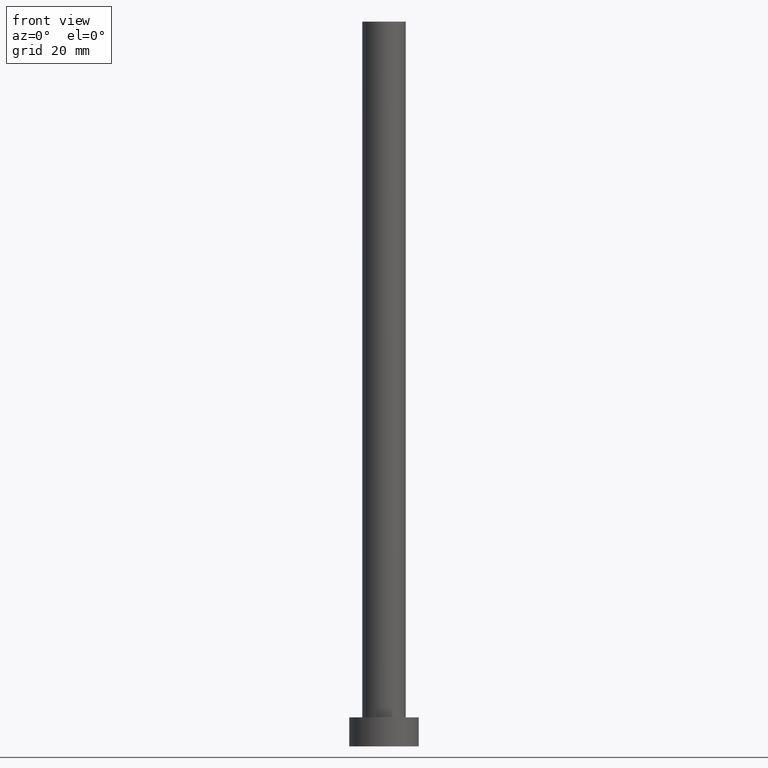
[diagram: clean part render]
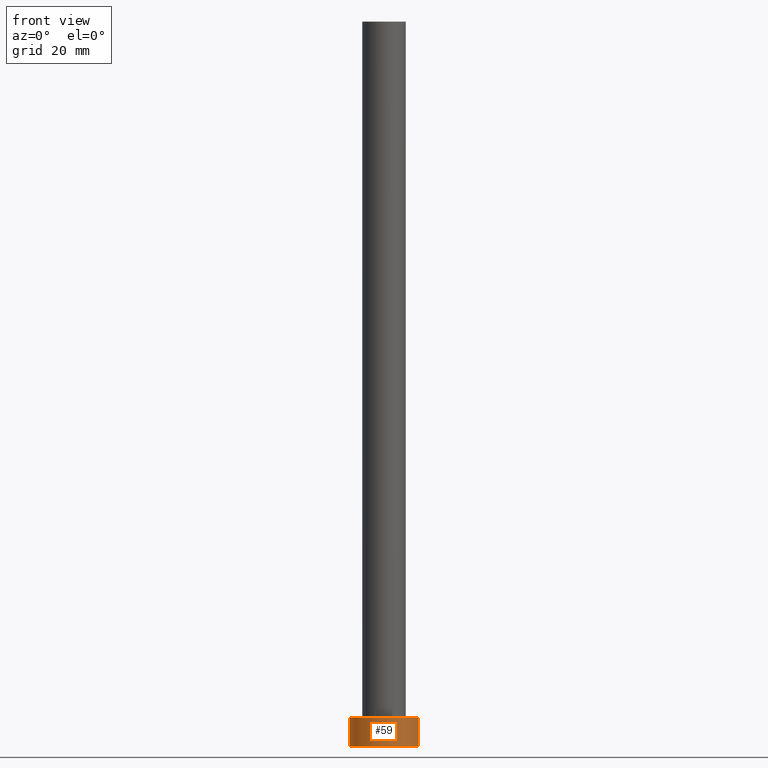
[diagram: same view with one face highlighted and labeled with its STEP entity id]
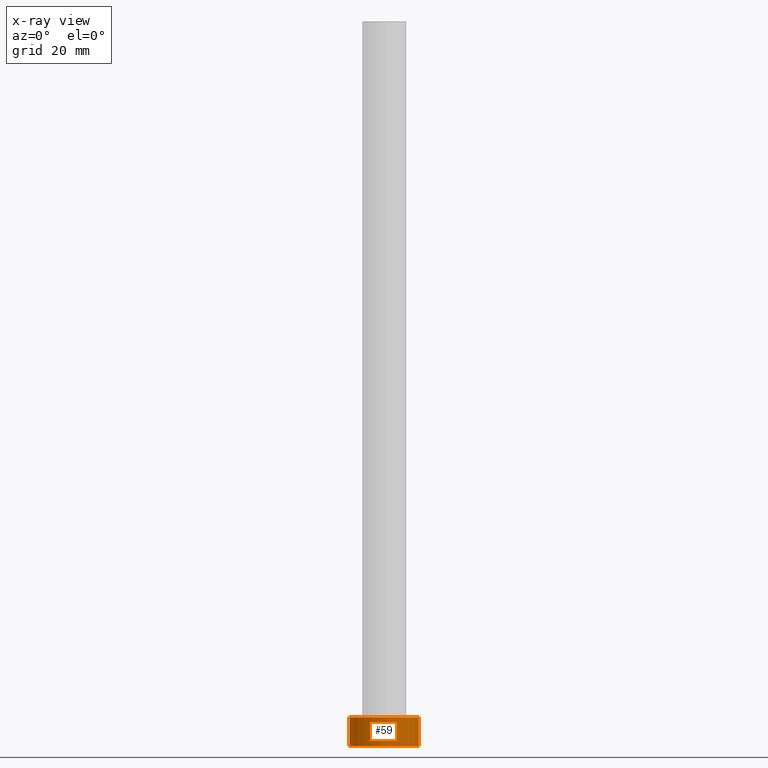
[diagram: x-ray of the same camera — body ghosted, the highlighted face saturated]
A machine part, front view. The second image highlights one B-rep face of the part: STEP entity #59.
The next image is the same camera in x-ray: the body ghosted, the highlighted face saturated — about 0% of this face is hidden behind the body in this view.
In plain terms, the highlighted cylindrical surface (edge-blend (fillet) strip) has radius 6 mm, axis along (-0, -0, -1).
Its self-contained STEP definition (entity closure, byte-faithful):
#14 = EDGE_LOOP ( 'NONE', ( #236, #143, #245, #40 ) ) ;
#15 = EDGE_CURVE ( 'NONE', #86, #204, #208, .T. ) ;
#22 = CARTESIAN_POINT ( 'NONE',  ( 6.000000000000000888, 7.347880794884120722E-16, 0.000000000000000000 ) ) ;
#27 = CARTESIAN_POINT ( 'NONE',  ( 6.000000000000000888, 7.347880794884120722E-16, 5.000000000000000000 ) ) ;
#40 = ORIENTED_EDGE ( 'NONE', *, *, #163, .T. ) ;
#43 = AXIS2_PLACEMENT_3D ( 'NONE', #116, #185, #255 ) ;
#57 = DIRECTION ( 'NONE',  ( 0.000000000000000000, 0.000000000000000000, 1.000000000000000000 ) ) ;
#58 = DIRECTION ( 'NONE',  ( -0.000000000000000000, -0.000000000000000000, -1.000000000000000000 ) ) ;
#59 = ADVANCED_FACE ( 'NONE', ( #94 ), #129, .T. ) ;
#62 = VERTEX_POINT ( 'NONE', #175 ) ;
#65 = CARTESIAN_POINT ( 'NONE',  ( 0.000000000000000000, 0.000000000000000000, 5.000000000000000000 ) ) ;
#70 = DIRECTION ( 'NONE',  ( -0.000000000000000000, -0.000000000000000000, -1.000000000000000000 ) ) ;
#81 = CIRCLE ( 'NONE', #218, 6.000000000000000888 ) ;
#86 = VERTEX_POINT ( 'NONE', #131 ) ;
#94 = FACE_OUTER_BOUND ( 'NONE', #14, .T. ) ;
#98 = CARTESIAN_POINT ( 'NONE',  ( -6.000000000000000888, 0.000000000000000000, 5.000000000000000000 ) ) ;
#100 = AXIS2_PLACEMENT_3D ( 'NONE', #65, #105, #228 ) ;
#105 = DIRECTION ( 'NONE',  ( -0.000000000000000000, -0.000000000000000000, -1.000000000000000000 ) ) ;
#116 = CARTESIAN_POINT ( 'NONE',  ( 0.000000000000000000, 0.000000000000000000, 0.000000000000000000 ) ) ;
#129 = CYLINDRICAL_SURFACE ( 'NONE', #100, 6.000000000000000888 ) ;
#131 = CARTESIAN_POINT ( 'NONE',  ( 6.000000000000000888, 7.347880794884120722E-16, 5.000000000000000000 ) ) ;
#135 = CIRCLE ( 'NONE', #43, 6.000000000000000888 ) ;
#143 = ORIENTED_EDGE ( 'NONE', *, *, #238, .F. ) ;
#144 = VECTOR ( 'NONE', #70, 1000.000000000000000 ) ;
#162 = CARTESIAN_POINT ( 'NONE',  ( -6.000000000000000888, 0.000000000000000000, 5.000000000000000000 ) ) ;
#163 = EDGE_CURVE ( 'NONE', #62, #204, #135, .T. ) ;
#175 = CARTESIAN_POINT ( 'NONE',  ( -6.000000000000000888, 0.000000000000000000, 0.000000000000000000 ) ) ;
#178 = EDGE_CURVE ( 'NONE', #186, #62, #231, .T. ) ;
#184 = DIRECTION ( 'NONE',  ( 1.000000000000000000, 0.000000000000000000, 0.000000000000000000 ) ) ;
#185 = DIRECTION ( 'NONE',  ( 0.000000000000000000, 0.000000000000000000, 1.000000000000000000 ) ) ;
#186 = VERTEX_POINT ( 'NONE', #98 ) ;
#192 = VECTOR ( 'NONE', #58, 1000.000000000000000 ) ;
#204 = VERTEX_POINT ( 'NONE', #22 ) ;
#208 = LINE ( 'NONE', #27, #144 ) ;
#214 = CARTESIAN_POINT ( 'NONE',  ( 0.000000000000000000, 0.000000000000000000, 5.000000000000000000 ) ) ;
#218 = AXIS2_PLACEMENT_3D ( 'NONE', #214, #57, #184 ) ;
#228 = DIRECTION ( 'NONE',  ( -1.000000000000000000, 0.000000000000000000, 0.000000000000000000 ) ) ;
#231 = LINE ( 'NONE', #162, #192 ) ;
#236 = ORIENTED_EDGE ( 'NONE', *, *, #15, .F. ) ;
#238 = EDGE_CURVE ( 'NONE', #186, #86, #81, .T. ) ;
#245 = ORIENTED_EDGE ( 'NONE', *, *, #178, .T. ) ;
#255 = DIRECTION ( 'NONE',  ( 1.000000000000000000, 0.000000000000000000, 0.000000000000000000 ) ) ;